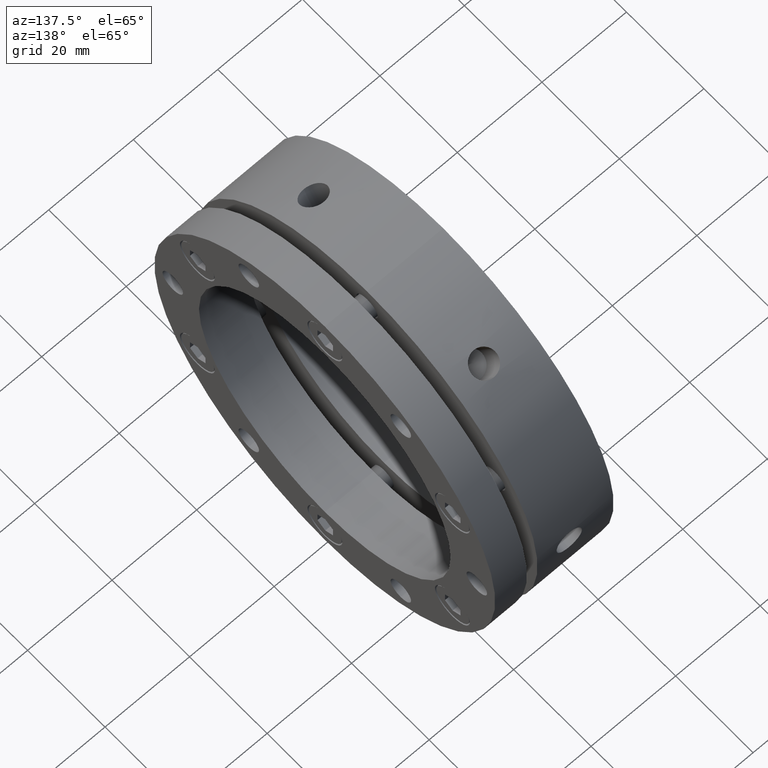
[diagram: clean part render]
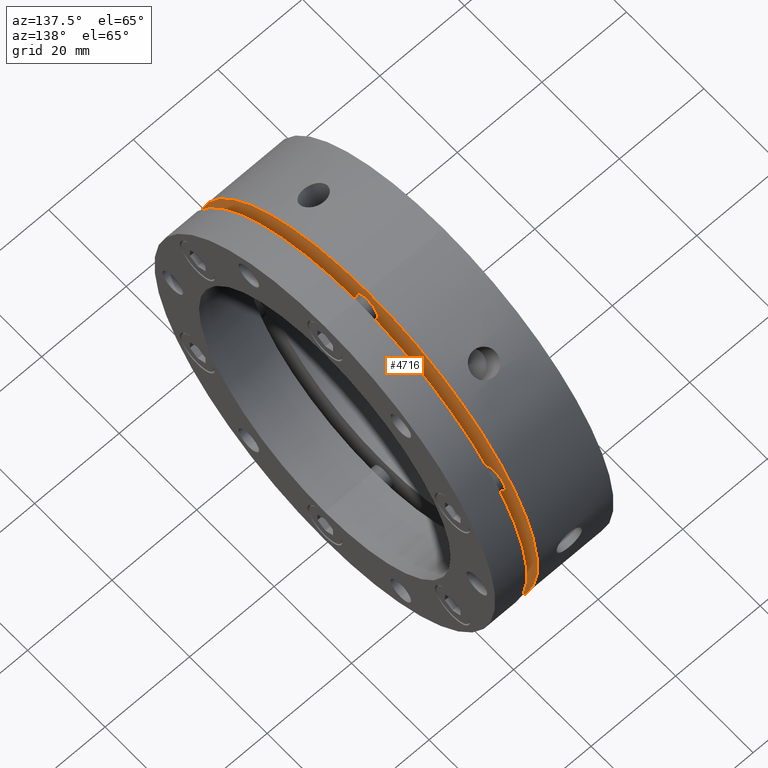
[diagram: same view with one face highlighted and labeled with its STEP entity id]
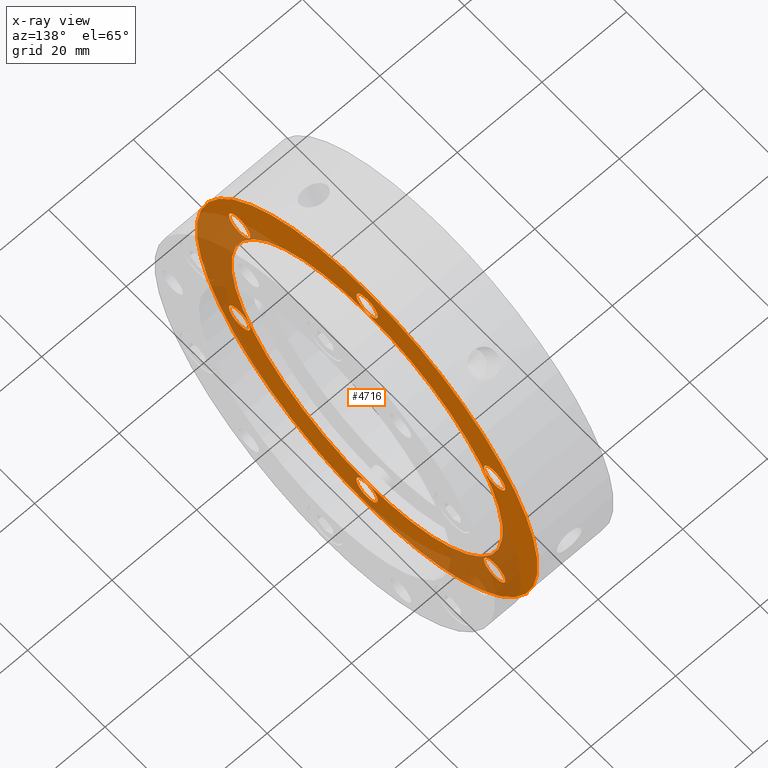
[diagram: x-ray of the same camera — body ghosted, the highlighted face saturated]
A machine part, auxiliary view. The second image highlights one B-rep face of the part: STEP entity #4716.
The next image is the same camera in x-ray: the body ghosted, the highlighted face saturated — about 33% of this face is hidden behind the body in this view.
In plain terms, the highlighted planar face has unit normal (-1, 0, 0).
Its self-contained STEP definition (entity closure, byte-faithful):
#134 = CARTESIAN_POINT ( 'NONE',  ( 17.99999999999999300, 0.0000000000000000000, 35.00000000000000700 ) ) ;
#179 = CARTESIAN_POINT ( 'NONE',  ( 17.99999999999999300, 4.286263797015737300E-015, -35.00000000000000700 ) ) ;
#193 = CARTESIAN_POINT ( 'NONE',  ( 17.99999999999999300, 0.0000000000000000000, -44.00000000000000000 ) ) ;
#224 = CARTESIAN_POINT ( 'NONE',  ( 17.99999999999999300, 5.388445916248353600E-015, 44.00000000000000000 ) ) ;
#576 = CARTESIAN_POINT ( 'NONE',  ( 17.99999999999999300, 32.90896534380871000, 18.99999999999999300 ) ) ;
#577 = DIRECTION ( 'NONE',  ( 1.000000000000000000, 0.0000000000000000000, 0.0000000000000000000 ) ) ;
#578 = DIRECTION ( 'NONE',  ( 0.0000000000000000000, 0.0000000000000000000, -1.000000000000000000 ) ) ;
#596 = CARTESIAN_POINT ( 'NONE',  ( 17.99999999999999300, 0.0000000000000000000, 0.0000000000000000000 ) ) ;
#597 = DIRECTION ( 'NONE',  ( 1.000000000000000000, -0.0000000000000000000, -0.0000000000000000000 ) ) ;
#598 = DIRECTION ( 'NONE',  ( 0.0000000000000000000, 0.0000000000000000000, 1.000000000000000000 ) ) ;
#682 = CARTESIAN_POINT ( 'NONE',  ( 17.99999999999999300, -6.661337999999999900E-015, -38.00000000000003600 ) ) ;
#683 = DIRECTION ( 'NONE',  ( 1.000000000000000000, 0.0000000000000000000, 0.0000000000000000000 ) ) ;
#684 = DIRECTION ( 'NONE',  ( 0.0000000000000000000, 0.0000000000000000000, -1.000000000000000000 ) ) ;
#692 = CARTESIAN_POINT ( 'NONE',  ( 17.99999999999999300, -32.90896534380870300, -19.00000000000000700 ) ) ;
#693 = DIRECTION ( 'NONE',  ( 1.000000000000000000, 0.0000000000000000000, 0.0000000000000000000 ) ) ;
#694 = DIRECTION ( 'NONE',  ( 0.0000000000000000000, 0.0000000000000000000, -1.000000000000000000 ) ) ;
#695 = CARTESIAN_POINT ( 'NONE',  ( 17.99999999999999300, -32.90896534380869600, 19.00000000000001800 ) ) ;
#696 = DIRECTION ( 'NONE',  ( 1.000000000000000000, 0.0000000000000000000, 0.0000000000000000000 ) ) ;
#697 = DIRECTION ( 'NONE',  ( 0.0000000000000000000, 0.0000000000000000000, -1.000000000000000000 ) ) ;
#717 = CARTESIAN_POINT ( 'NONE',  ( 17.99999999999999300, 0.0000000000000000000, 38.00000000000002800 ) ) ;
#718 = DIRECTION ( 'NONE',  ( 1.000000000000000000, 0.0000000000000000000, 0.0000000000000000000 ) ) ;
#719 = DIRECTION ( 'NONE',  ( 0.0000000000000000000, 0.0000000000000000000, -1.000000000000000000 ) ) ;
#736 = CARTESIAN_POINT ( 'NONE',  ( 17.99999999999999300, 32.90896534380868800, -19.00000000000003200 ) ) ;
#737 = DIRECTION ( 'NONE',  ( 1.000000000000000000, 0.0000000000000000000, 0.0000000000000000000 ) ) ;
#738 = DIRECTION ( 'NONE',  ( 0.0000000000000000000, 0.0000000000000000000, -1.000000000000000000 ) ) ;
#848 = CARTESIAN_POINT ( 'NONE',  ( 17.99999999999999300, 32.90896534380871000, 18.99999999999999300 ) ) ;
#849 = DIRECTION ( 'NONE',  ( 1.000000000000000000, 0.0000000000000000000, 0.0000000000000000000 ) ) ;
#850 = DIRECTION ( 'NONE',  ( 0.0000000000000000000, 0.0000000000000000000, -1.000000000000000000 ) ) ;
#854 = CARTESIAN_POINT ( 'NONE',  ( 17.99999999999999300, 32.90896534380868800, -19.00000000000003200 ) ) ;
#855 = DIRECTION ( 'NONE',  ( 1.000000000000000000, 0.0000000000000000000, 0.0000000000000000000 ) ) ;
#856 = DIRECTION ( 'NONE',  ( 0.0000000000000000000, 0.0000000000000000000, -1.000000000000000000 ) ) ;
#857 = CARTESIAN_POINT ( 'NONE',  ( 17.99999999999999300, -6.661337999999999900E-015, -38.00000000000003600 ) ) ;
#858 = DIRECTION ( 'NONE',  ( 1.000000000000000000, 0.0000000000000000000, 0.0000000000000000000 ) ) ;
#859 = DIRECTION ( 'NONE',  ( 0.0000000000000000000, 0.0000000000000000000, -1.000000000000000000 ) ) ;
#860 = CARTESIAN_POINT ( 'NONE',  ( 17.99999999999999300, -32.90896534380870300, -19.00000000000000700 ) ) ;
#861 = DIRECTION ( 'NONE',  ( 1.000000000000000000, 0.0000000000000000000, 0.0000000000000000000 ) ) ;
#862 = DIRECTION ( 'NONE',  ( 0.0000000000000000000, 0.0000000000000000000, -1.000000000000000000 ) ) ;
#866 = CARTESIAN_POINT ( 'NONE',  ( 17.99999999999999300, -32.90896534380869600, 19.00000000000001800 ) ) ;
#867 = DIRECTION ( 'NONE',  ( 1.000000000000000000, 0.0000000000000000000, 0.0000000000000000000 ) ) ;
#868 = DIRECTION ( 'NONE',  ( 0.0000000000000000000, 0.0000000000000000000, -1.000000000000000000 ) ) ;
#869 = CARTESIAN_POINT ( 'NONE',  ( 17.99999999999999300, 0.0000000000000000000, 38.00000000000002800 ) ) ;
#870 = DIRECTION ( 'NONE',  ( 1.000000000000000000, 0.0000000000000000000, 0.0000000000000000000 ) ) ;
#871 = DIRECTION ( 'NONE',  ( 0.0000000000000000000, 0.0000000000000000000, -1.000000000000000000 ) ) ;
#872 = CARTESIAN_POINT ( 'NONE',  ( 17.99999999999999300, 0.0000000000000000000, 0.0000000000000000000 ) ) ;
#873 = DIRECTION ( 'NONE',  ( 1.000000000000000000, -0.0000000000000000000, -0.0000000000000000000 ) ) ;
#874 = DIRECTION ( 'NONE',  ( 0.0000000000000000000, 0.0000000000000000000, 1.000000000000000000 ) ) ;
#918 = CARTESIAN_POINT ( 'NONE',  ( 17.99999999999999300, 0.0000000000000000000, 0.0000000000000000000 ) ) ;
#919 = DIRECTION ( 'NONE',  ( -1.000000000000000000, -0.0000000000000000000, -0.0000000000000000000 ) ) ;
#920 = DIRECTION ( 'NONE',  ( 0.0000000000000000000, 0.0000000000000000000, -1.000000000000000000 ) ) ;
#1029 = EDGE_LOOP ( 'NONE', ( #4204, #4205 ) ) ;
#1034 = EDGE_LOOP ( 'NONE', ( #4214, #4215 ) ) ;
#1040 = EDGE_LOOP ( 'NONE', ( #4216, #4217 ) ) ;
#1064 = EDGE_LOOP ( 'NONE', ( #4218, #4219 ) ) ;
#1077 = EDGE_LOOP ( 'NONE', ( #4206, #4207 ) ) ;
#1078 = EDGE_LOOP ( 'NONE', ( #4210, #4211 ) ) ;
#1086 = EDGE_LOOP ( 'NONE', ( #4212, #4213 ) ) ;
#1092 = EDGE_LOOP ( 'NONE', ( #4208, #4209 ) ) ;
#1156 = EDGE_CURVE ( 'NONE', #1794, #1649, #4278, .T. ) ;
#1388 = CIRCLE ( 'NONE', #3237, 2.749999999999999100 ) ;
#1402 = CIRCLE ( 'NONE', #3240, 35.00000000000000700 ) ;
#1455 = CIRCLE ( 'NONE', #3257, 2.750000000000002700 ) ;
#1463 = CIRCLE ( 'NONE', #3259, 2.749999999999999100 ) ;
#1466 = CIRCLE ( 'NONE', #3260, 2.749999999999999100 ) ;
#1473 = CIRCLE ( 'NONE', #3265, 2.750000000000002700 ) ;
#1499 = VERTEX_POINT ( 'NONE', #134 ) ;
#1553 = CIRCLE ( 'NONE', #3295, 2.749999999999999100 ) ;
#1556 = CIRCLE ( 'NONE', #3297, 2.749999999999999100 ) ;
#1557 = CIRCLE ( 'NONE', #3298, 2.750000000000002700 ) ;
#1558 = CIRCLE ( 'NONE', #3299, 2.749999999999999100 ) ;
#1560 = CIRCLE ( 'NONE', #3301, 2.749999999999999100 ) ;
#1561 = CIRCLE ( 'NONE', #3302, 2.750000000000002700 ) ;
#1562 = CIRCLE ( 'NONE', #3303, 35.00000000000000700 ) ;
#1582 = CIRCLE ( 'NONE', #3318, 44.00000000000000000 ) ;
#1589 = VERTEX_POINT ( 'NONE', #179 ) ;
#1649 = VERTEX_POINT ( 'NONE', #193 ) ;
#1794 = VERTEX_POINT ( 'NONE', #224 ) ;
#1893 = CARTESIAN_POINT ( 'NONE',  ( 17.99999999999999300, 32.90896534380871000, 16.24999999999999300 ) ) ;
#1894 = CARTESIAN_POINT ( 'NONE',  ( 17.99999999999999300, 32.90896534380871000, 21.74999999999999300 ) ) ;
#1897 = CARTESIAN_POINT ( 'NONE',  ( 17.99999999999999300, 32.90896534380868800, -21.75000000000002800 ) ) ;
#1898 = CARTESIAN_POINT ( 'NONE',  ( 17.99999999999999300, 32.90896534380868800, -16.25000000000003200 ) ) ;
#1901 = CARTESIAN_POINT ( 'NONE',  ( 17.99999999999999300, -6.661337999999999900E-015, -40.75000000000003600 ) ) ;
#1902 = CARTESIAN_POINT ( 'NONE',  ( 17.99999999999999300, -6.324560130234478200E-015, -35.25000000000002800 ) ) ;
#1905 = CARTESIAN_POINT ( 'NONE',  ( 17.99999999999999300, -32.90896534380870300, -21.75000000000000700 ) ) ;
#1906 = CARTESIAN_POINT ( 'NONE',  ( 17.99999999999999300, -32.90896534380870300, -16.25000000000000700 ) ) ;
#1909 = CARTESIAN_POINT ( 'NONE',  ( 17.99999999999999300, -32.90896534380869600, 16.25000000000001800 ) ) ;
#1910 = CARTESIAN_POINT ( 'NONE',  ( 17.99999999999999300, -32.90896534380869600, 21.75000000000001400 ) ) ;
#1913 = CARTESIAN_POINT ( 'NONE',  ( 17.99999999999999300, 0.0000000000000000000, 35.25000000000002100 ) ) ;
#1914 = CARTESIAN_POINT ( 'NONE',  ( 17.99999999999999300, 3.367778697655217600E-016, 40.75000000000002800 ) ) ;
#2328 = CARTESIAN_POINT ( 'NONE',  ( 17.99999999999999300, 39.50000000000000000, 0.0000000000000000000 ) ) ;
#2330 = DIRECTION ( 'NONE',  ( -1.000000000000000000, 0.0000000000000000000, 0.0000000000000000000 ) ) ;
#2335 = PLANE ( 'NONE',  #3443 ) ;
#2337 = DIRECTION ( 'NONE',  ( 0.0000000000000000000, 0.0000000000000000000, 1.000000000000000000 ) ) ;
#2616 = FACE_BOUND ( 'NONE', #1078, .T. ) ;
#2619 = FACE_BOUND ( 'NONE', #1029, .T. ) ;
#2620 = FACE_BOUND ( 'NONE', #1092, .T. ) ;
#2621 = FACE_BOUND ( 'NONE', #1086, .T. ) ;
#2623 = FACE_BOUND ( 'NONE', #1077, .T. ) ;
#2624 = FACE_BOUND ( 'NONE', #1034, .T. ) ;
#2625 = FACE_BOUND ( 'NONE', #1040, .T. ) ;
#2626 = FACE_OUTER_BOUND ( 'NONE', #1064, .T. ) ;
#3184 = EDGE_CURVE ( 'NONE', #4554, #4553, #1388, .T. ) ;
#3192 = EDGE_CURVE ( 'NONE', #1589, #1499, #1402, .T. ) ;
#3237 = AXIS2_PLACEMENT_3D ( 'NONE', #576, #577, #578 ) ;
#3240 = AXIS2_PLACEMENT_3D ( 'NONE', #596, #597, #598 ) ;
#3257 = AXIS2_PLACEMENT_3D ( 'NONE', #682, #683, #684 ) ;
#3259 = AXIS2_PLACEMENT_3D ( 'NONE', #692, #693, #694 ) ;
#3260 = AXIS2_PLACEMENT_3D ( 'NONE', #695, #696, #697 ) ;
#3265 = AXIS2_PLACEMENT_3D ( 'NONE', #717, #718, #719 ) ;
#3268 = AXIS2_PLACEMENT_3D ( 'NONE', #736, #737, #738 ) ;
#3295 = AXIS2_PLACEMENT_3D ( 'NONE', #848, #849, #850 ) ;
#3297 = AXIS2_PLACEMENT_3D ( 'NONE', #854, #855, #856 ) ;
#3298 = AXIS2_PLACEMENT_3D ( 'NONE', #857, #858, #859 ) ;
#3299 = AXIS2_PLACEMENT_3D ( 'NONE', #860, #861, #862 ) ;
#3301 = AXIS2_PLACEMENT_3D ( 'NONE', #866, #867, #868 ) ;
#3302 = AXIS2_PLACEMENT_3D ( 'NONE', #869, #870, #871 ) ;
#3303 = AXIS2_PLACEMENT_3D ( 'NONE', #872, #873, #874 ) ;
#3318 = AXIS2_PLACEMENT_3D ( 'NONE', #918, #919, #920 ) ;
#3443 = AXIS2_PLACEMENT_3D ( 'NONE', #2328, #2330, #2337 ) ;
#3587 = EDGE_CURVE ( 'NONE', #4562, #4561, #1455, .T. ) ;
#3592 = EDGE_CURVE ( 'NONE', #4566, #4565, #1463, .T. ) ;
#3593 = EDGE_CURVE ( 'NONE', #4570, #4569, #1466, .T. ) ;
#3601 = EDGE_CURVE ( 'NONE', #4574, #4573, #1473, .T. ) ;
#3609 = EDGE_CURVE ( 'NONE', #4558, #4557, #4288, .T. ) ;
#3637 = EDGE_CURVE ( 'NONE', #4553, #4554, #1553, .T. ) ;
#3639 = EDGE_CURVE ( 'NONE', #4557, #4558, #1556, .T. ) ;
#3640 = EDGE_CURVE ( 'NONE', #4561, #4562, #1557, .T. ) ;
#3641 = EDGE_CURVE ( 'NONE', #4565, #4566, #1558, .T. ) ;
#3643 = EDGE_CURVE ( 'NONE', #4569, #4570, #1560, .T. ) ;
#3644 = EDGE_CURVE ( 'NONE', #4573, #4574, #1561, .T. ) ;
#3645 = EDGE_CURVE ( 'NONE', #1499, #1589, #1562, .T. ) ;
#3660 = EDGE_CURVE ( 'NONE', #1649, #1794, #1582, .T. ) ;
#3669 = AXIS2_PLACEMENT_3D ( 'NONE', #4430, #4431, #4432 ) ;
#4204 = ORIENTED_EDGE ( 'NONE', *, *, #3645, .F. ) ;
#4205 = ORIENTED_EDGE ( 'NONE', *, *, #3192, .F. ) ;
#4206 = ORIENTED_EDGE ( 'NONE', *, *, #3644, .F. ) ;
#4207 = ORIENTED_EDGE ( 'NONE', *, *, #3601, .F. ) ;
#4208 = ORIENTED_EDGE ( 'NONE', *, *, #3643, .F. ) ;
#4209 = ORIENTED_EDGE ( 'NONE', *, *, #3593, .F. ) ;
#4210 = ORIENTED_EDGE ( 'NONE', *, *, #3641, .F. ) ;
#4211 = ORIENTED_EDGE ( 'NONE', *, *, #3592, .F. ) ;
#4212 = ORIENTED_EDGE ( 'NONE', *, *, #3640, .F. ) ;
#4213 = ORIENTED_EDGE ( 'NONE', *, *, #3587, .F. ) ;
#4214 = ORIENTED_EDGE ( 'NONE', *, *, #3639, .F. ) ;
#4215 = ORIENTED_EDGE ( 'NONE', *, *, #3609, .F. ) ;
#4216 = ORIENTED_EDGE ( 'NONE', *, *, #3637, .F. ) ;
#4217 = ORIENTED_EDGE ( 'NONE', *, *, #3184, .F. ) ;
#4218 = ORIENTED_EDGE ( 'NONE', *, *, #3660, .F. ) ;
#4219 = ORIENTED_EDGE ( 'NONE', *, *, #1156, .F. ) ;
#4278 = CIRCLE ( 'NONE', #3669, 44.00000000000000000 ) ;
#4288 = CIRCLE ( 'NONE', #3268, 2.749999999999999100 ) ;
#4430 = CARTESIAN_POINT ( 'NONE',  ( 17.99999999999999300, 0.0000000000000000000, 0.0000000000000000000 ) ) ;
#4431 = DIRECTION ( 'NONE',  ( -1.000000000000000000, -0.0000000000000000000, -0.0000000000000000000 ) ) ;
#4432 = DIRECTION ( 'NONE',  ( 0.0000000000000000000, 0.0000000000000000000, -1.000000000000000000 ) ) ;
#4553 = VERTEX_POINT ( 'NONE', #1893 ) ;
#4554 = VERTEX_POINT ( 'NONE', #1894 ) ;
#4557 = VERTEX_POINT ( 'NONE', #1897 ) ;
#4558 = VERTEX_POINT ( 'NONE', #1898 ) ;
#4561 = VERTEX_POINT ( 'NONE', #1901 ) ;
#4562 = VERTEX_POINT ( 'NONE', #1902 ) ;
#4565 = VERTEX_POINT ( 'NONE', #1905 ) ;
#4566 = VERTEX_POINT ( 'NONE', #1906 ) ;
#4569 = VERTEX_POINT ( 'NONE', #1909 ) ;
#4570 = VERTEX_POINT ( 'NONE', #1910 ) ;
#4573 = VERTEX_POINT ( 'NONE', #1913 ) ;
#4574 = VERTEX_POINT ( 'NONE', #1914 ) ;
#4716 = ADVANCED_FACE ( 'NONE', ( #2619, #2623, #2620, #2616, #2621, #2624, #2625, #2626 ), #2335, .F. ) ;